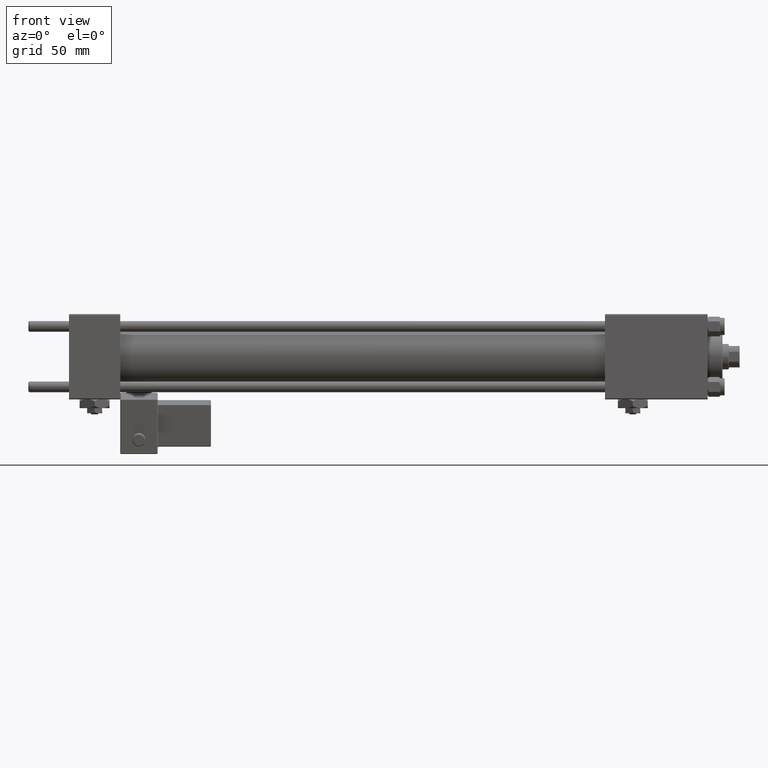
[diagram: clean part render]
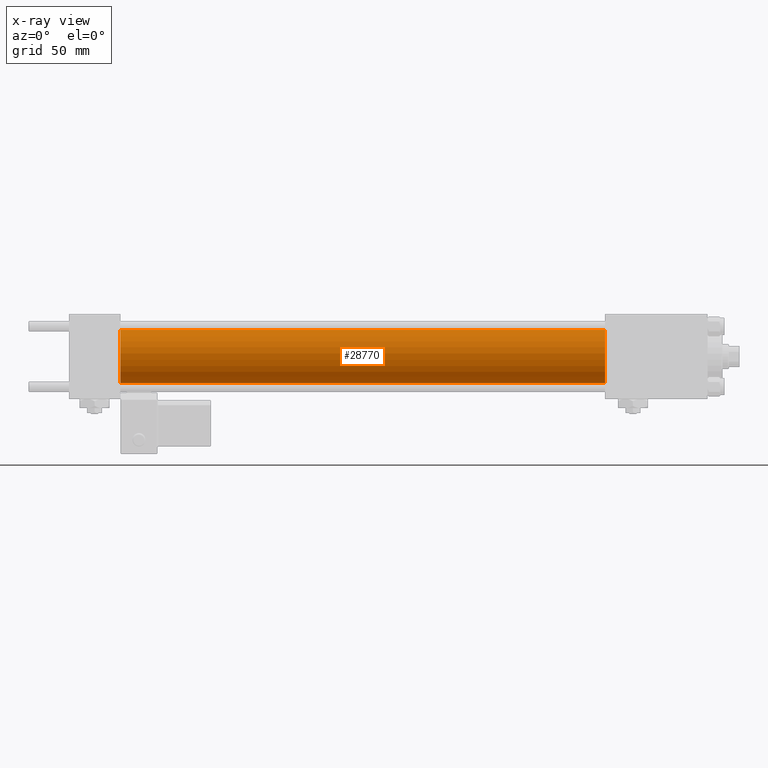
[diagram: x-ray — body ghosted, one internal face saturated and labeled with its STEP entity id]
A machine part, front view, then the same camera in x-ray: the body is ghosted and one INTERNAL B-rep face — a face not visible from any outside direction — is saturated and labeled: STEP entity #28770.
In plain terms, the highlighted cylindrical surface (edge-blend (fillet) strip) has radius 12.5 mm, axis along (-1, -0, -0).
Its self-contained STEP definition (entity closure, byte-faithful):
#464 = VECTOR ( 'NONE', #25474, 1000.000000000000000 ) ;
#1486 = DIRECTION ( 'NONE',  ( 1.000000000000000000, 0.000000000000000000, 0.000000000000000000 ) ) ;
#4679 = LINE ( 'NONE', #36955, #464 ) ;
#7530 = CARTESIAN_POINT ( 'NONE',  ( 24.00000000000000000, 1.530808498934190732E-15, -12.49999999999999645 ) ) ;
#7938 = ORIENTED_EDGE ( 'NONE', *, *, #26485, .F. ) ;
#9250 = CIRCLE ( 'NONE', #24964, 12.49999999999999645 ) ;
#9753 = DIRECTION ( 'NONE',  ( -1.000000000000000000, -0.000000000000000000, -0.000000000000000000 ) ) ;
#10238 = CIRCLE ( 'NONE', #41619, 12.49999999999999645 ) ;
#12771 = EDGE_CURVE ( 'NONE', #37017, #53296, #38173, .T. ) ;
#13300 = CARTESIAN_POINT ( 'NONE',  ( 251.0000000000000000, 0.000000000000000000, 12.49999999999999645 ) ) ;
#13686 = DIRECTION ( 'NONE',  ( 1.000000000000000000, 0.000000000000000000, 0.000000000000000000 ) ) ;
#19606 = FACE_OUTER_BOUND ( 'NONE', #46980, .T. ) ;
#19869 = DIRECTION ( 'NONE',  ( -1.000000000000000000, -0.000000000000000000, -0.000000000000000000 ) ) ;
#20202 = VECTOR ( 'NONE', #9753, 1000.000000000000000 ) ;
#23737 = VERTEX_POINT ( 'NONE', #7530 ) ;
#24869 = EDGE_CURVE ( 'NONE', #38606, #23737, #4679, .T. ) ;
#24964 = AXIS2_PLACEMENT_3D ( 'NONE', #43044, #1486, #42499 ) ;
#25474 = DIRECTION ( 'NONE',  ( -1.000000000000000000, -0.000000000000000000, -0.000000000000000000 ) ) ;
#26485 = EDGE_CURVE ( 'NONE', #53296, #23737, #9250, .T. ) ;
#27162 = CARTESIAN_POINT ( 'NONE',  ( 251.0000000000000000, 1.530808498934190732E-15, -12.49999999999999645 ) ) ;
#27707 = AXIS2_PLACEMENT_3D ( 'NONE', #36279, #19869, #52932 ) ;
#28307 = CARTESIAN_POINT ( 'NONE',  ( 24.00000000000000000, 0.000000000000000000, 12.49999999999999645 ) ) ;
#28331 = EDGE_CURVE ( 'NONE', #37017, #38606, #10238, .T. ) ;
#28770 = ADVANCED_FACE ( 'NONE', ( #19606 ), #49632, .F. ) ;
#36279 = CARTESIAN_POINT ( 'NONE',  ( 251.0000000000000000, 0.000000000000000000, 0.000000000000000000 ) ) ;
#36955 = CARTESIAN_POINT ( 'NONE',  ( 251.0000000000000000, 1.530808498934190732E-15, -12.49999999999999645 ) ) ;
#37017 = VERTEX_POINT ( 'NONE', #37495 ) ;
#37495 = CARTESIAN_POINT ( 'NONE',  ( 251.0000000000000000, 0.000000000000000000, 12.49999999999999645 ) ) ;
#38173 = LINE ( 'NONE', #13300, #20202 ) ;
#38606 = VERTEX_POINT ( 'NONE', #27162 ) ;
#38833 = DIRECTION ( 'NONE',  ( 0.000000000000000000, 0.000000000000000000, -1.000000000000000000 ) ) ;
#41619 = AXIS2_PLACEMENT_3D ( 'NONE', #51120, #13686, #38833 ) ;
#42499 = DIRECTION ( 'NONE',  ( 0.000000000000000000, 0.000000000000000000, -1.000000000000000000 ) ) ;
#43044 = CARTESIAN_POINT ( 'NONE',  ( 24.00000000000000000, 0.000000000000000000, 0.000000000000000000 ) ) ;
#44404 = ORIENTED_EDGE ( 'NONE', *, *, #24869, .T. ) ;
#46980 = EDGE_LOOP ( 'NONE', ( #49494, #44404, #7938, #52288 ) ) ;
#49494 = ORIENTED_EDGE ( 'NONE', *, *, #28331, .T. ) ;
#49632 = CYLINDRICAL_SURFACE ( 'NONE', #27707, 12.49999999999999645 ) ;
#51120 = CARTESIAN_POINT ( 'NONE',  ( 251.0000000000000000, 0.000000000000000000, 0.000000000000000000 ) ) ;
#52288 = ORIENTED_EDGE ( 'NONE', *, *, #12771, .F. ) ;
#52932 = DIRECTION ( 'NONE',  ( 0.000000000000000000, 0.000000000000000000, 1.000000000000000000 ) ) ;
#53296 = VERTEX_POINT ( 'NONE', #28307 ) ;